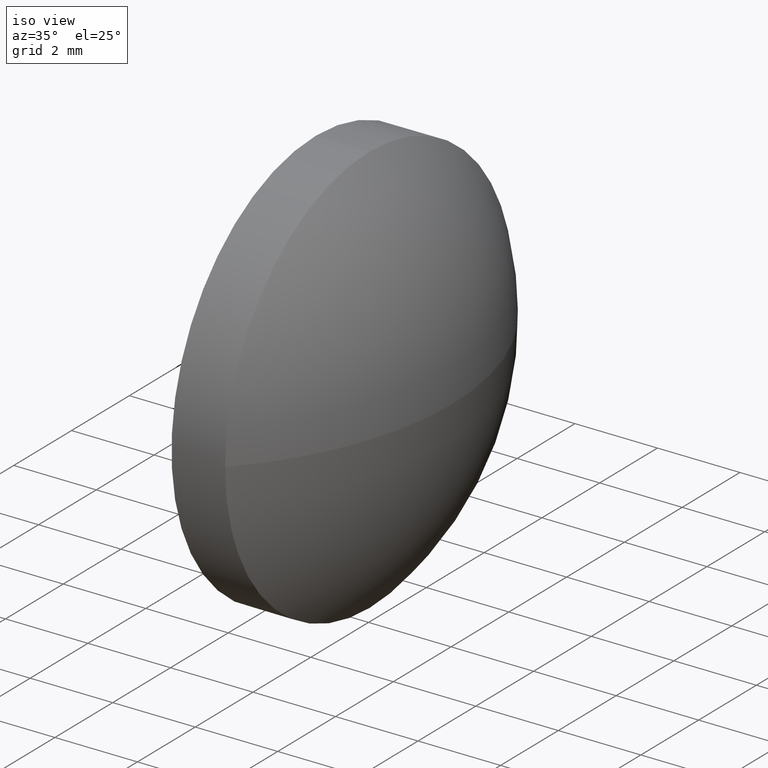
[diagram: clean part render]
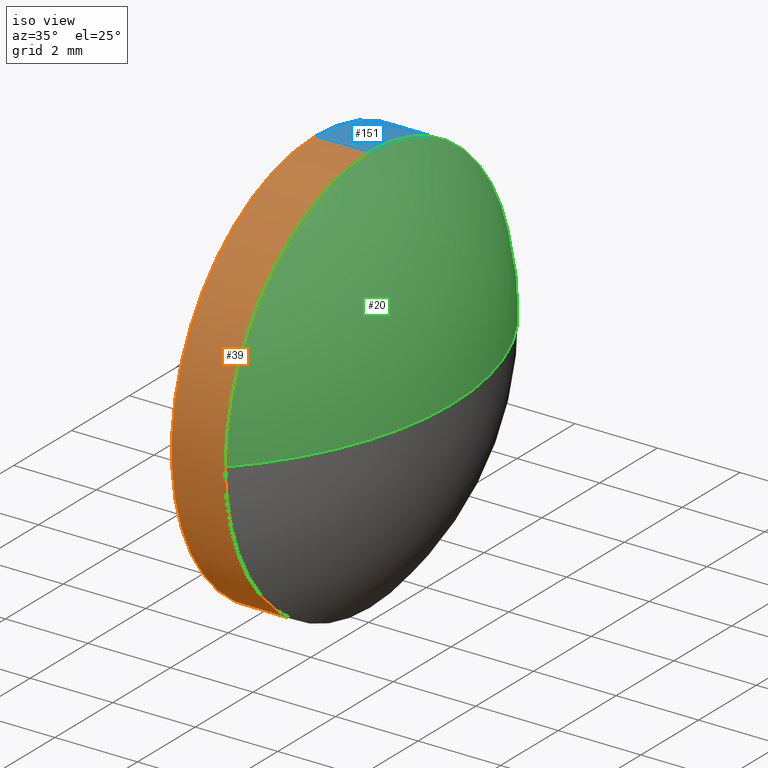
[diagram: same view with three faces highlighted in distinct colors, each labeled with its STEP entity id]
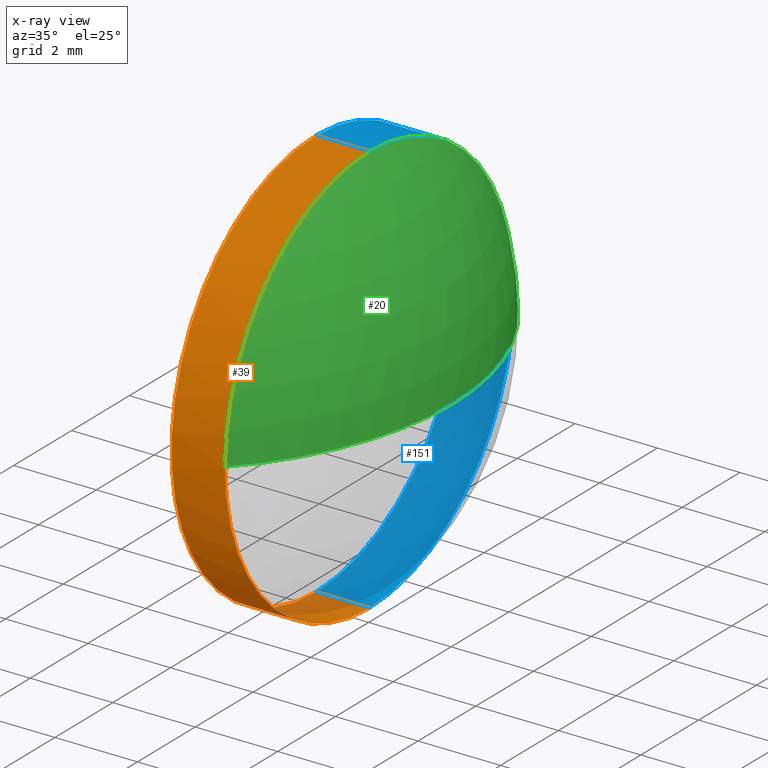
[diagram: x-ray of the same camera — body ghosted, the three highlighted faces saturated]
A machine part, iso view with three faces highlighted in distinct colors.
The next image is the same camera in x-ray (body ghosted, the three faces saturated) — at least one of them is partly hidden behind the body in this view.
Their STEP definitions:

[orange] entity #39 — the highlighted cylindrical surface (partial cylindrical patch) has radius 5 mm, axis along (-1, -0, -0).
#1 = DIRECTION ( 'NONE',  ( 0.0000000000000000000, 0.0000000000000000000, 1.000000000000000000 ) ) ;
#5 = DIRECTION ( 'NONE',  ( -1.000000000000000000, -0.0000000000000000000, -0.0000000000000000000 ) ) ;
#6 = ORIENTED_EDGE ( 'NONE', *, *, #118, .T. ) ;
#8 = DIRECTION ( 'NONE',  ( -1.000000000000000000, -0.0000000000000000000, -0.0000000000000000000 ) ) ;
#14 = EDGE_CURVE ( 'NONE', #44, #40, #182, .T. ) ;
#18 = LINE ( 'NONE', #165, #181 ) ;
#19 = CARTESIAN_POINT ( 'NONE',  ( 409.8965939749438100, 117.1833303763285600, -6.123233995736756400E-016 ) ) ;
#21 = DIRECTION ( 'NONE',  ( 0.0000000000000000000, 0.0000000000000000000, 1.000000000000000000 ) ) ;
#22 = AXIS2_PLACEMENT_3D ( 'NONE', #74, #143, #128 ) ;
#25 = DIRECTION ( 'NONE',  ( -1.000000000000000000, -0.0000000000000000000, -0.0000000000000000000 ) ) ;
#27 = EDGE_CURVE ( 'NONE', #34, #172, #18, .T. ) ;
#28 = CARTESIAN_POINT ( 'NONE',  ( 408.5965939749438000, 122.1833303763285700, -4.999999999999990200 ) ) ;
#29 = CIRCLE ( 'NONE', #22, 4.999999999999990200 ) ;
#34 = VERTEX_POINT ( 'NONE', #60 ) ;
#37 = CARTESIAN_POINT ( 'NONE',  ( 408.5965939749438000, 122.1833303763285700, 4.999999999999990200 ) ) ;
#39 = ADVANCED_FACE ( 'NONE', ( #92 ), #54, .T. ) ;
#40 = VERTEX_POINT ( 'NONE', #28 ) ;
#41 = CARTESIAN_POINT ( 'NONE',  ( 407.4543642824994000, 122.1833303763285700, 0.0000000000000000000 ) ) ;
#44 = VERTEX_POINT ( 'NONE', #56 ) ;
#54 = CYLINDRICAL_SURFACE ( 'NONE', #91, 4.999999999999990200 ) ;
#56 = CARTESIAN_POINT ( 'NONE',  ( 409.8965939749438100, 122.1833303763285700, -4.999999999999990200 ) ) ;
#57 = EDGE_LOOP ( 'NONE', ( #89, #120, #6, #82, #102 ) ) ;
#60 = CARTESIAN_POINT ( 'NONE',  ( 409.8965939749438100, 122.1833303763285700, 4.999999999999990200 ) ) ;
#63 = CARTESIAN_POINT ( 'NONE',  ( 408.5965939749438000, 122.1833303763285700, 0.0000000000000000000 ) ) ;
#65 = AXIS2_PLACEMENT_3D ( 'NONE', #63, #5, #159 ) ;
#68 = CIRCLE ( 'NONE', #65, 4.999999999999990200 ) ;
#71 = AXIS2_PLACEMENT_3D ( 'NONE', #88, #8, #21 ) ;
#74 = CARTESIAN_POINT ( 'NONE',  ( 409.8965939749438100, 122.1833303763285700, 0.0000000000000000000 ) ) ;
#82 = ORIENTED_EDGE ( 'NONE', *, *, #27, .T. ) ;
#88 = CARTESIAN_POINT ( 'NONE',  ( 409.8965939749438100, 122.1833303763285700, 0.0000000000000000000 ) ) ;
#89 = ORIENTED_EDGE ( 'NONE', *, *, #14, .F. ) ;
#91 = AXIS2_PLACEMENT_3D ( 'NONE', #41, #171, #1 ) ;
#92 = FACE_OUTER_BOUND ( 'NONE', #57, .T. ) ;
#102 = ORIENTED_EDGE ( 'NONE', *, *, #110, .F. ) ;
#110 = EDGE_CURVE ( 'NONE', #40, #172, #68, .T. ) ;
#111 = VECTOR ( 'NONE', #168, 1000.000000000000000 ) ;
#118 = EDGE_CURVE ( 'NONE', #148, #34, #29, .T. ) ;
#120 = ORIENTED_EDGE ( 'NONE', *, *, #140, .T. ) ;
#128 = DIRECTION ( 'NONE',  ( 0.0000000000000000000, 0.0000000000000000000, 1.000000000000000000 ) ) ;
#140 = EDGE_CURVE ( 'NONE', #44, #148, #147, .T. ) ;
#141 = CARTESIAN_POINT ( 'NONE',  ( 407.4543642824994000, 122.1833303763285700, -4.999999999999990200 ) ) ;
#143 = DIRECTION ( 'NONE',  ( -1.000000000000000000, -0.0000000000000000000, -0.0000000000000000000 ) ) ;
#147 = CIRCLE ( 'NONE', #71, 4.999999999999990200 ) ;
#148 = VERTEX_POINT ( 'NONE', #19 ) ;
#159 = DIRECTION ( 'NONE',  ( 0.0000000000000000000, 0.0000000000000000000, 1.000000000000000000 ) ) ;
#165 = CARTESIAN_POINT ( 'NONE',  ( 407.4543642824994000, 122.1833303763285700, 4.999999999999990200 ) ) ;
#168 = DIRECTION ( 'NONE',  ( -1.000000000000000000, -0.0000000000000000000, -0.0000000000000000000 ) ) ;
#171 = DIRECTION ( 'NONE',  ( -1.000000000000000000, -0.0000000000000000000, -0.0000000000000000000 ) ) ;
#172 = VERTEX_POINT ( 'NONE', #37 ) ;
#181 = VECTOR ( 'NONE', #25, 1000.000000000000000 ) ;
#182 = LINE ( 'NONE', #141, #111 ) ;

[blue] entity #151 — the highlighted cylindrical surface (partial cylindrical patch) has radius 5 mm, axis along (-1, -0, -0).
#3 = ORIENTED_EDGE ( 'NONE', *, *, #27, .F. ) ;
#7 = DIRECTION ( 'NONE',  ( -1.000000000000000000, -0.0000000000000000000, -0.0000000000000000000 ) ) ;
#11 = DIRECTION ( 'NONE',  ( -1.000000000000000000, -0.0000000000000000000, -0.0000000000000000000 ) ) ;
#12 = CYLINDRICAL_SURFACE ( 'NONE', #104, 4.999999999999990200 ) ;
#13 = CARTESIAN_POINT ( 'NONE',  ( 409.8965939749438100, 127.1833303763285700, 0.0000000000000000000 ) ) ;
#14 = EDGE_CURVE ( 'NONE', #44, #40, #182, .T. ) ;
#17 = CARTESIAN_POINT ( 'NONE',  ( 408.5965939749438000, 122.1833303763285700, 0.0000000000000000000 ) ) ;
#18 = LINE ( 'NONE', #165, #181 ) ;
#25 = DIRECTION ( 'NONE',  ( -1.000000000000000000, -0.0000000000000000000, -0.0000000000000000000 ) ) ;
#27 = EDGE_CURVE ( 'NONE', #34, #172, #18, .T. ) ;
#28 = CARTESIAN_POINT ( 'NONE',  ( 408.5965939749438000, 122.1833303763285700, -4.999999999999990200 ) ) ;
#34 = VERTEX_POINT ( 'NONE', #60 ) ;
#37 = CARTESIAN_POINT ( 'NONE',  ( 408.5965939749438000, 122.1833303763285700, 4.999999999999990200 ) ) ;
#40 = VERTEX_POINT ( 'NONE', #28 ) ;
#44 = VERTEX_POINT ( 'NONE', #56 ) ;
#46 = FACE_OUTER_BOUND ( 'NONE', #97, .T. ) ;
#47 = ORIENTED_EDGE ( 'NONE', *, *, #14, .T. ) ;
#49 = DIRECTION ( 'NONE',  ( 0.0000000000000000000, 0.0000000000000000000, 1.000000000000000000 ) ) ;
#51 = CARTESIAN_POINT ( 'NONE',  ( 407.4543642824994000, 122.1833303763285700, 0.0000000000000000000 ) ) ;
#56 = CARTESIAN_POINT ( 'NONE',  ( 409.8965939749438100, 122.1833303763285700, -4.999999999999990200 ) ) ;
#60 = CARTESIAN_POINT ( 'NONE',  ( 409.8965939749438100, 122.1833303763285700, 4.999999999999990200 ) ) ;
#76 = DIRECTION ( 'NONE',  ( -1.000000000000000000, -0.0000000000000000000, -0.0000000000000000000 ) ) ;
#77 = ORIENTED_EDGE ( 'NONE', *, *, #157, .T. ) ;
#78 = DIRECTION ( 'NONE',  ( -1.000000000000000000, -0.0000000000000000000, -0.0000000000000000000 ) ) ;
#80 = VERTEX_POINT ( 'NONE', #13 ) ;
#94 = ORIENTED_EDGE ( 'NONE', *, *, #96, .T. ) ;
#96 = EDGE_CURVE ( 'NONE', #80, #44, #133, .T. ) ;
#97 = EDGE_LOOP ( 'NONE', ( #94, #47, #144, #3, #77 ) ) ;
#104 = AXIS2_PLACEMENT_3D ( 'NONE', #51, #78, #152 ) ;
#111 = VECTOR ( 'NONE', #168, 1000.000000000000000 ) ;
#112 = AXIS2_PLACEMENT_3D ( 'NONE', #145, #7, #174 ) ;
#117 = DIRECTION ( 'NONE',  ( 0.0000000000000000000, 0.0000000000000000000, 1.000000000000000000 ) ) ;
#119 = CARTESIAN_POINT ( 'NONE',  ( 409.8965939749438100, 122.1833303763285700, 0.0000000000000000000 ) ) ;
#123 = CIRCLE ( 'NONE', #162, 4.999999999999990200 ) ;
#125 = EDGE_CURVE ( 'NONE', #172, #40, #123, .T. ) ;
#129 = AXIS2_PLACEMENT_3D ( 'NONE', #119, #11, #49 ) ;
#133 = CIRCLE ( 'NONE', #112, 4.999999999999990200 ) ;
#141 = CARTESIAN_POINT ( 'NONE',  ( 407.4543642824994000, 122.1833303763285700, -4.999999999999990200 ) ) ;
#144 = ORIENTED_EDGE ( 'NONE', *, *, #125, .F. ) ;
#145 = CARTESIAN_POINT ( 'NONE',  ( 409.8965939749438100, 122.1833303763285700, 0.0000000000000000000 ) ) ;
#151 = ADVANCED_FACE ( 'NONE', ( #46 ), #12, .T. ) ;
#152 = DIRECTION ( 'NONE',  ( 0.0000000000000000000, 0.0000000000000000000, 1.000000000000000000 ) ) ;
#157 = EDGE_CURVE ( 'NONE', #34, #80, #170, .T. ) ;
#162 = AXIS2_PLACEMENT_3D ( 'NONE', #17, #76, #117 ) ;
#165 = CARTESIAN_POINT ( 'NONE',  ( 407.4543642824994000, 122.1833303763285700, 4.999999999999990200 ) ) ;
#168 = DIRECTION ( 'NONE',  ( -1.000000000000000000, -0.0000000000000000000, -0.0000000000000000000 ) ) ;
#170 = CIRCLE ( 'NONE', #129, 4.999999999999990200 ) ;
#172 = VERTEX_POINT ( 'NONE', #37 ) ;
#174 = DIRECTION ( 'NONE',  ( 0.0000000000000000000, 0.0000000000000000000, 1.000000000000000000 ) ) ;
#181 = VECTOR ( 'NONE', #25, 1000.000000000000000 ) ;
#182 = LINE ( 'NONE', #141, #111 ) ;

[green] entity #20 — the highlighted spherical surface has radius 7.25 mm.
#2 = EDGE_LOOP ( 'NONE', ( #167, #55, #72, #52 ) ) ;
#11 = DIRECTION ( 'NONE',  ( -1.000000000000000000, -0.0000000000000000000, -0.0000000000000000000 ) ) ;
#13 = CARTESIAN_POINT ( 'NONE',  ( 409.8965939749438100, 127.1833303763285700, 0.0000000000000000000 ) ) ;
#19 = CARTESIAN_POINT ( 'NONE',  ( 409.8965939749438100, 117.1833303763285600, -6.123233995736756400E-016 ) ) ;
#20 = ADVANCED_FACE ( 'NONE', ( #185 ), #160, .T. ) ;
#22 = AXIS2_PLACEMENT_3D ( 'NONE', #74, #143, #128 ) ;
#29 = CIRCLE ( 'NONE', #22, 4.999999999999990200 ) ;
#32 = CIRCLE ( 'NONE', #59, 7.250000000000033800 ) ;
#34 = VERTEX_POINT ( 'NONE', #60 ) ;
#35 = DIRECTION ( 'NONE',  ( 0.0000000000000000000, 1.000000000000000000, 1.224646799147351200E-016 ) ) ;
#42 = VERTEX_POINT ( 'NONE', #81 ) ;
#49 = DIRECTION ( 'NONE',  ( 0.0000000000000000000, 0.0000000000000000000, 1.000000000000000000 ) ) ;
#52 = ORIENTED_EDGE ( 'NONE', *, *, #118, .F. ) ;
#53 = CARTESIAN_POINT ( 'NONE',  ( 404.6465939749438100, 122.1833303763285400, 0.0000000000000000000 ) ) ;
#55 = ORIENTED_EDGE ( 'NONE', *, *, #87, .T. ) ;
#59 = AXIS2_PLACEMENT_3D ( 'NONE', #95, #98, #70 ) ;
#60 = CARTESIAN_POINT ( 'NONE',  ( 409.8965939749438100, 122.1833303763285700, 4.999999999999990200 ) ) ;
#70 = DIRECTION ( 'NONE',  ( 1.000000000000000000, 0.0000000000000000000, 0.0000000000000000000 ) ) ;
#72 = ORIENTED_EDGE ( 'NONE', *, *, #157, .F. ) ;
#74 = CARTESIAN_POINT ( 'NONE',  ( 409.8965939749438100, 122.1833303763285700, 0.0000000000000000000 ) ) ;
#80 = VERTEX_POINT ( 'NONE', #13 ) ;
#81 = CARTESIAN_POINT ( 'NONE',  ( 411.8965939749438100, 122.1833303763285400, 0.0000000000000000000 ) ) ;
#87 = EDGE_CURVE ( 'NONE', #42, #80, #32, .T. ) ;
#93 = CIRCLE ( 'NONE', #184, 7.250000000000048000 ) ;
#95 = CARTESIAN_POINT ( 'NONE',  ( 404.6465939749438100, 122.1833303763285400, 0.0000000000000000000 ) ) ;
#98 = DIRECTION ( 'NONE',  ( -0.0000000000000000000, 0.0000000000000000000, 1.000000000000000000 ) ) ;
#118 = EDGE_CURVE ( 'NONE', #148, #34, #29, .T. ) ;
#119 = CARTESIAN_POINT ( 'NONE',  ( 409.8965939749438100, 122.1833303763285700, 0.0000000000000000000 ) ) ;
#122 = DIRECTION ( 'NONE',  ( 0.0000000000000000000, 1.000000000000000000, 0.0000000000000000000 ) ) ;
#128 = DIRECTION ( 'NONE',  ( 0.0000000000000000000, 0.0000000000000000000, 1.000000000000000000 ) ) ;
#129 = AXIS2_PLACEMENT_3D ( 'NONE', #119, #11, #49 ) ;
#138 = DIRECTION ( 'NONE',  ( 0.0000000000000000000, 1.224646799147353200E-016, -1.000000000000000000 ) ) ;
#143 = DIRECTION ( 'NONE',  ( -1.000000000000000000, -0.0000000000000000000, -0.0000000000000000000 ) ) ;
#148 = VERTEX_POINT ( 'NONE', #19 ) ;
#157 = EDGE_CURVE ( 'NONE', #34, #80, #170, .T. ) ;
#160 = SPHERICAL_SURFACE ( 'NONE', #166, 7.250000000000034600 ) ;
#166 = AXIS2_PLACEMENT_3D ( 'NONE', #186, #183, #122 ) ;
#167 = ORIENTED_EDGE ( 'NONE', *, *, #176, .F. ) ;
#170 = CIRCLE ( 'NONE', #129, 4.999999999999990200 ) ;
#176 = EDGE_CURVE ( 'NONE', #42, #148, #93, .T. ) ;
#183 = DIRECTION ( 'NONE',  ( -0.0000000000000000000, 0.0000000000000000000, -1.000000000000000000 ) ) ;
#184 = AXIS2_PLACEMENT_3D ( 'NONE', #53, #138, #35 ) ;
#185 = FACE_OUTER_BOUND ( 'NONE', #2, .T. ) ;
#186 = CARTESIAN_POINT ( 'NONE',  ( 404.6465939749438100, 122.1833303763285400, 0.0000000000000000000 ) ) ;